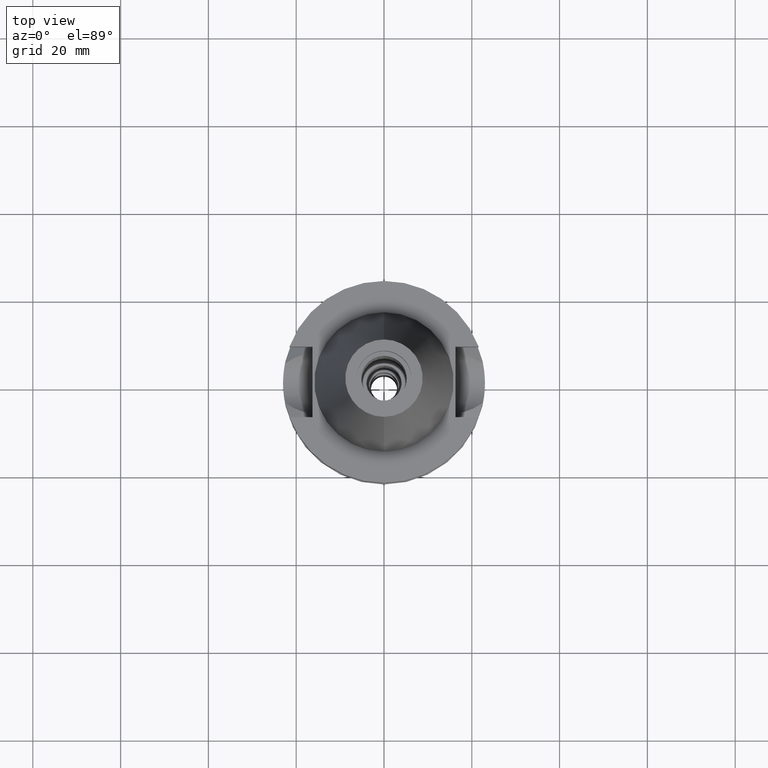
[diagram: clean part render]
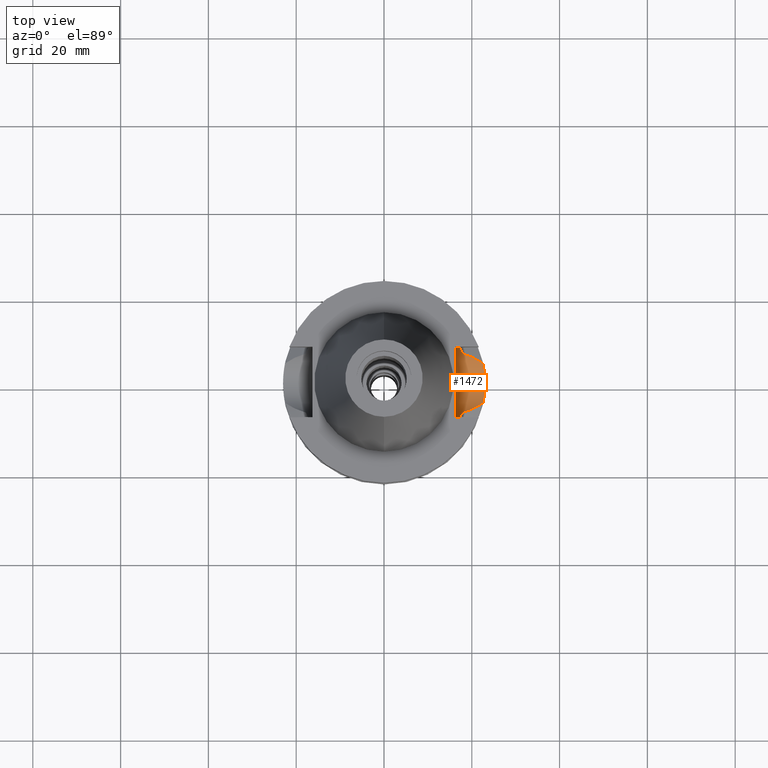
[diagram: same view with one face highlighted and labeled with its STEP entity id]
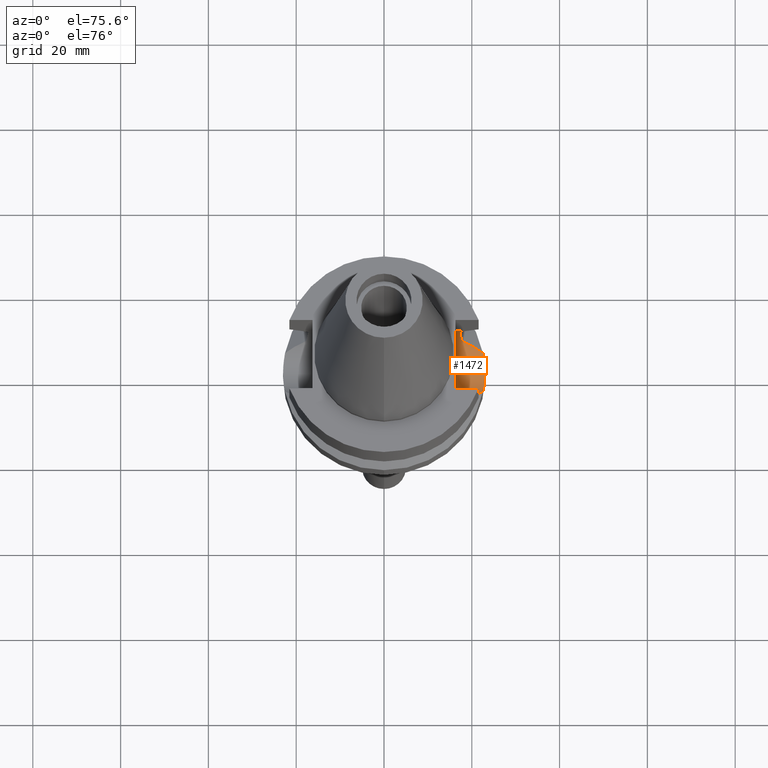
[diagram: same view with one face highlighted and labeled with its STEP entity id]
A machine part, top view. The second image highlights one B-rep face of the part: STEP entity #1472.
A second angle (auxiliary view) of the same face is appended — the face is thin or edge-on in the first view.
In plain terms, the highlighted cylindrical surface (edge-blend (fillet) strip) has radius 8.05 mm, axis along (1, 0, 0).
Its self-contained STEP definition (entity closure, byte-faithful):
#233=CARTESIAN_POINT('',(1.896736186694E1,-8.050001277873E0,-1.094999977540E1));
#234=CARTESIAN_POINT('',(1.877435788408E1,-8.050001277873E0,-1.105257472423E1));
#235=CARTESIAN_POINT('',(1.838865476369E1,-8.046082019801E0,-1.125795281918E1));
#236=CARTESIAN_POINT('',(1.781119204546E1,-8.028323726412E0,-1.156685916138E1));
#237=CARTESIAN_POINT('',(1.742708427631E1,-8.008477147751E0,-1.177326090514E1));
#238=CARTESIAN_POINT('',(1.723531135314E1,-7.996501749112E0,-1.187660739353E1));
#300=CARTESIAN_POINT('',(1.63E1,0.E0,-1.095E1));
#301=DIRECTION('',(-1.E0,0.E0,0.E0));
#302=DIRECTION('',(0.E0,1.E0,0.E0));
#303=AXIS2_PLACEMENT_3D('',#300,#301,#302);
#308=CARTESIAN_POINT('',(1.63E1,0.E0,-1.095E1));
#309=DIRECTION('',(-1.E0,0.E0,0.E0));
#310=DIRECTION('',(0.E0,0.E0,-1.E0));
#311=AXIS2_PLACEMENT_3D('',#308,#309,#310);
#366=CARTESIAN_POINT('',(1.723531622904E1,7.996491146277E0,-1.187660607781E1));
#367=CARTESIAN_POINT('',(1.742711751403E1,8.008468271789E0,-1.177324424046E1));
#368=CARTESIAN_POINT('',(1.781125610070E1,8.028331856440E0,-1.156681091111E1));
#369=CARTESIAN_POINT('',(1.838870194717E1,8.046085191966E0,-1.125790844374E1));
#370=CARTESIAN_POINT('',(1.877442071819E1,8.049994318183E0,-1.105255736998E1));
#371=CARTESIAN_POINT('',(1.896738966530E1,8.049994318183E0,-1.095000099923E1));
#456=CARTESIAN_POINT('',(1.775736593456E1,-6.758398853744E0,-1.532339055353E1));
#457=CARTESIAN_POINT('',(1.840360769520E1,-6.559219343741E0,-1.563119168760E1));
#458=CARTESIAN_POINT('',(1.962126651941E1,-6.120537216752E0,-1.621423420870E1));
#459=CARTESIAN_POINT('',(2.116333771721E1,-5.393599340677E0,-1.695735369637E1));
#460=CARTESIAN_POINT('',(2.211578077610E1,-4.807270652504E0,-1.741842255462E1));
#461=CARTESIAN_POINT('',(2.255786346208E1,-4.488072640470E0,-1.763279163029E1));
#492=CARTESIAN_POINT('',(1.723531135314E1,-7.996501749112E0,-1.187660739353E1));
#493=CARTESIAN_POINT('',(1.725678889125E1,-7.950209935444E0,-1.227610109962E1));
#494=CARTESIAN_POINT('',(1.732665303634E1,-7.799119177172E0,-1.306450180029E1));
#495=CARTESIAN_POINT('',(1.750823173234E1,-7.386403530797E0,-1.422993365443E1));
#496=CARTESIAN_POINT('',(1.766912364433E1,-6.990251201065E0,-1.496509860151E1));
#497=CARTESIAN_POINT('',(1.775736593456E1,-6.758398853744E0,-1.532339055353E1));
#502=DIRECTION('',(-9.999999999999E-1,4.790775581496E-7,-8.420253777261E-8));
#503=VECTOR('',#502,2.667361866940E0);
#504=CARTESIAN_POINT('',(1.896736186694E1,-8.050001277873E0,-1.094999977540E1));
#505=LINE('',#504,#503);
#509=DIRECTION('',(9.999999999977E-1,-2.130104035150E-6,-3.746083742388E-7));
#510=VECTOR('',#509,2.667389665308E0);
#511=CARTESIAN_POINT('',(1.63E1,8.05E0,-1.095E1));
#512=LINE('',#511,#510);
#516=CARTESIAN_POINT('',(2.255786346208E1,-4.488072640470E0,-1.763279163029E1));
#517=CARTESIAN_POINT('',(2.264815242152E1,-4.034264027644E0,-1.793756336820E1));
#518=CARTESIAN_POINT('',(2.280758329285E1,-3.091487796053E0,-1.843944863256E1));
#519=CARTESIAN_POINT('',(2.296426374127E1,-1.564029530107E0,-1.889880064483E1));
#520=CARTESIAN_POINT('',(2.300000044605E1,-5.266725411526E-1,
-1.900000145547E1));
#521=CARTESIAN_POINT('',(2.300000044605E1,5.252525433188E-14,
-1.900000145547E1));
#526=CARTESIAN_POINT('',(2.300000044605E1,5.252525433188E-14,
-1.900000145547E1));
#527=CARTESIAN_POINT('',(2.300000044605E1,5.268249431403E-1,-1.900000145547E1));
#528=CARTESIAN_POINT('',(2.296424251226E1,1.564382967035E0,-1.889874034183E1));
#529=CARTESIAN_POINT('',(2.280753655701E1,3.091803250600E0,-1.843930737626E1));
#530=CARTESIAN_POINT('',(2.264812827463E1,4.034385394303E0,-1.793748185999E1));
#531=CARTESIAN_POINT('',(2.255786346208E1,4.488072640470E0,-1.763279163029E1));
#569=CARTESIAN_POINT('',(2.255786346208E1,4.488072640470E0,-1.763279163029E1));
#570=CARTESIAN_POINT('',(2.210021029587E1,4.818513043336E0,-1.741087231671E1));
#571=CARTESIAN_POINT('',(2.112432236499E1,5.414838456001E0,-1.693849665069E1));
#572=CARTESIAN_POINT('',(1.958717490114E1,6.133721147097E0,-1.619787446889E1));
#573=CARTESIAN_POINT('',(1.838872568544E1,6.563806158756E0,-1.562410347424E1));
#574=CARTESIAN_POINT('',(1.775736593456E1,6.758398853744E0,-1.532339055353E1));
#961=CARTESIAN_POINT('',(1.775736593456E1,6.758398853744E0,-1.532339055353E1));
#962=CARTESIAN_POINT('',(1.766906836174E1,6.990396453417E0,-1.496487413646E1));
#963=CARTESIAN_POINT('',(1.750811847341E1,7.386671879778E0,-1.422936406742E1));
#964=CARTESIAN_POINT('',(1.732657549381E1,7.799288209426E0,-1.306384797530E1));
#965=CARTESIAN_POINT('',(1.725677825910E1,7.950232758024E0,-1.227581304930E1));
#966=CARTESIAN_POINT('',(1.723531622904E1,7.996491146277E0,-1.187660607781E1));
#1035=VERTEX_POINT('',#526);
#1036=VERTEX_POINT('',#531);
#1037=VERTEX_POINT('',#516);
#1042=VERTEX_POINT('',#456);
#1043=VERTEX_POINT('',#492);
#1044=VERTEX_POINT('',#233);
#1045=CARTESIAN_POINT('',(1.63E1,-8.05E0,-1.095E1));
#1046=VERTEX_POINT('',#1045);
#1047=CARTESIAN_POINT('',(1.63E1,0.E0,-1.9E1));
#1048=VERTEX_POINT('',#1047);
#1049=CARTESIAN_POINT('',(1.63E1,8.05E0,-1.095E1));
#1050=VERTEX_POINT('',#1049);
#1051=CARTESIAN_POINT('',(1.896738966530E1,8.049994318183E0,-1.095000099923E1));
#1052=VERTEX_POINT('',#1051);
#1053=VERTEX_POINT('',#366);
#1054=VERTEX_POINT('',#961);
#1449=CARTESIAN_POINT('',(1.63E1,0.E0,-1.095E1));
#1450=DIRECTION('',(1.E0,0.E0,0.E0));
#1451=DIRECTION('',(0.E0,0.E0,-1.E0));
#1452=AXIS2_PLACEMENT_3D('',#1449,#1450,#1451);
#1453=CYLINDRICAL_SURFACE('',#1452,8.05E0);
#1455=ORIENTED_EDGE('',*,*,#1454,.F.);
#1457=ORIENTED_EDGE('',*,*,#1456,.F.);
#1458=ORIENTED_EDGE('',*,*,#1425,.F.);
#1459=ORIENTED_EDGE('',*,*,#1442,.F.);
#1460=ORIENTED_EDGE('',*,*,#1266,.F.);
#1461=ORIENTED_EDGE('',*,*,#1302,.T.);
#1462=ORIENTED_EDGE('',*,*,#1317,.F.);
#1463=ORIENTED_EDGE('',*,*,#1315,.F.);
#1464=ORIENTED_EDGE('',*,*,#1330,.T.);
#1465=ORIENTED_EDGE('',*,*,#1352,.F.);
#1467=ORIENTED_EDGE('',*,*,#1466,.F.);
#1469=ORIENTED_EDGE('',*,*,#1468,.F.);
#1470=EDGE_LOOP('',(#1455,#1457,#1458,#1459,#1460,#1461,#1462,#1463,#1464,#1465,
#1467,#1469));
#1471=FACE_OUTER_BOUND('',#1470,.F.);
#239=B_SPLINE_CURVE_WITH_KNOTS('',3,(#233,#234,#235,#236,#237,#238),
.UNSPECIFIED.,.F.,.F.,(4,1,1,4),(0.E0,3.333333333333E-1,6.666666666667E-1,1.E0),
.UNSPECIFIED.);
#304=CIRCLE('',#303,8.05E0);
#312=CIRCLE('',#311,8.05E0);
#372=B_SPLINE_CURVE_WITH_KNOTS('',3,(#366,#367,#368,#369,#370,#371),
.UNSPECIFIED.,.F.,.F.,(4,1,1,4),(0.E0,3.333333333333E-1,6.666666666667E-1,1.E0),
.UNSPECIFIED.);
#462=B_SPLINE_CURVE_WITH_KNOTS('',3,(#456,#457,#458,#459,#460,#461),
.UNSPECIFIED.,.F.,.F.,(4,1,1,4),(0.E0,3.333333333333E-1,6.666666666667E-1,1.E0),
.UNSPECIFIED.);
#498=B_SPLINE_CURVE_WITH_KNOTS('',3,(#492,#493,#494,#495,#496,#497),
.UNSPECIFIED.,.F.,.F.,(4,1,1,4),(0.E0,3.333333333333E-1,6.666666666667E-1,1.E0),
.UNSPECIFIED.);
#522=B_SPLINE_CURVE_WITH_KNOTS('',3,(#516,#517,#518,#519,#520,#521),
.UNSPECIFIED.,.F.,.F.,(4,1,1,4),(0.E0,3.333333333333E-1,6.666666666667E-1,1.E0),
.UNSPECIFIED.);
#532=B_SPLINE_CURVE_WITH_KNOTS('',3,(#526,#527,#528,#529,#530,#531),
.UNSPECIFIED.,.F.,.F.,(4,1,1,4),(0.E0,3.333333333333E-1,6.666666666667E-1,1.E0),
.UNSPECIFIED.);
#575=B_SPLINE_CURVE_WITH_KNOTS('',3,(#569,#570,#571,#572,#573,#574),
.UNSPECIFIED.,.F.,.F.,(4,1,1,4),(0.E0,3.333333333333E-1,6.666666666667E-1,1.E0),
.UNSPECIFIED.);
#967=B_SPLINE_CURVE_WITH_KNOTS('',3,(#961,#962,#963,#964,#965,#966),
.UNSPECIFIED.,.F.,.F.,(4,1,1,4),(0.E0,3.333333333333E-1,6.666666666667E-1,1.E0),
.UNSPECIFIED.);
#1266=EDGE_CURVE('',#1044,#1043,#239,.T.);
#1302=EDGE_CURVE('',#1044,#1046,#505,.T.);
#1315=EDGE_CURVE('',#1050,#1048,#304,.T.);
#1317=EDGE_CURVE('',#1048,#1046,#312,.T.);
#1330=EDGE_CURVE('',#1050,#1052,#512,.T.);
#1352=EDGE_CURVE('',#1053,#1052,#372,.T.);
#1425=EDGE_CURVE('',#1042,#1037,#462,.T.);
#1442=EDGE_CURVE('',#1043,#1042,#498,.T.);
#1454=EDGE_CURVE('',#1035,#1036,#532,.T.);
#1456=EDGE_CURVE('',#1037,#1035,#522,.T.);
#1466=EDGE_CURVE('',#1054,#1053,#967,.T.);
#1468=EDGE_CURVE('',#1036,#1054,#575,.T.);
#1472=ADVANCED_FACE('',(#1471),#1453,.F.);